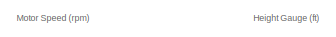
[diagram: root canvas - part 1/2, top center region]
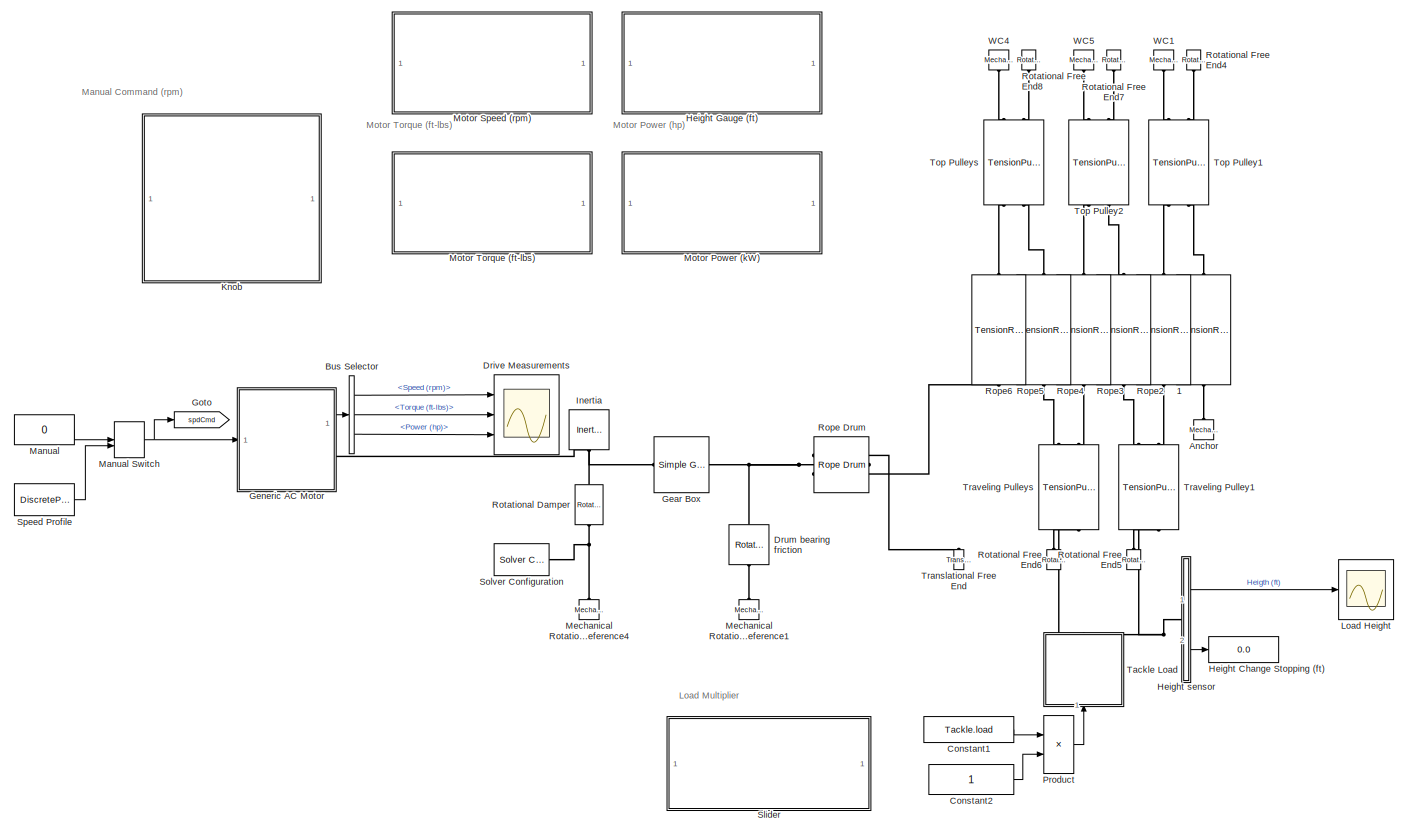
[diagram: root canvas - part 2/2, most of the canvas]
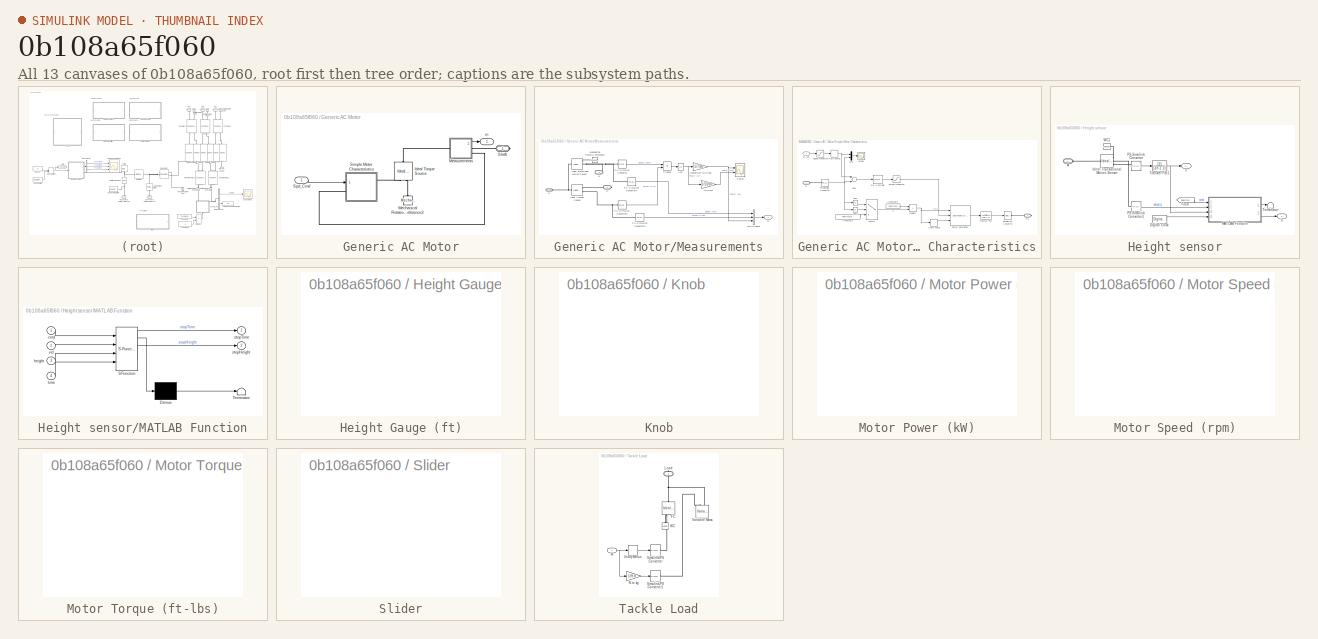
[diagram: thumbnail index - all 13 canvases of the model, root first then tree order]
MODEL slx_0b108a65f060
KIND model
CONFIG AbsTol = 1e-3
CONFIG EnableMultiTasking = on
CONFIG FixedStep = Ts
CONFIG InitFcn = DrawworksParameters();
CONFIG MaxStep = auto
CONFIG MinStep = auto
CONFIG PreLoadFcn = addpath('./Images');\naddpath('./Simscape_Pulley_Library');
CONFIG RelTol = 1e-3
CONFIG SampleTimeConstraint = Unconstrained
CONFIG Solver = ode45
CONFIG SolverName = ode45
CONFIG StartTime = 0.0
CONFIG StopTime = 30
BLOCK [Reference] 1  REF=CustomComponents_lib/TensionRope
  Ports = [0, 0, 0, 0, 0, 1, 1]
  SourceBlock = CustomComponents_lib/TensionRope
  SourceType = TensionRope
BLOCK [Reference] Anchor  REF=fl_lib/Mechanical/Translational
Elements/Mechanical
Translational
Reference
  Ports = [0, 0, 0, 0, 0, 1]
  SourceBlock = fl_lib/Mechanical/Translational\nElements/Mechanical\nTranslational\nReference
  SourceProductBaseCode = SS
  SourceProductName = Simscape
  SourceType = Mechanical\nTranslational\nReference
BLOCK [BusSelector] Bus Selector
  OutputAsBus = off
  OutputSignals = Speed (rpm),Torque (ft-lbs),Power (hp)
  Ports = [1, 3]
BLOCK [Constant] Constant1
  Value = Tackle.load
BLOCK [Constant] Constant2
BLOCK [Scope] Drive Measurements
  NumInputPorts = 3
  Ports = [3]
  ScopeSpecificationString = Simulink.scopes.TimeScopeBlockCfg('CurrentConfiguration', extmgr.ConfigurationSet(extmgr.Configuration('Core','General UI',true),extmgr.Configuration('Core','Source UI',true),extmgr.Configuration('Sources','WiredSimulink',true,'DataLoggingSaveFormat','Array','DataLoggingDecimation','1','DataLoggingDecimateData',true),extmgr.Configuration('Visuals','Time Domain',true,'SerializedDisplays',{struct('M...<+2960ch>
BLOCK [Reference] Drum bearing friction  REF=fl_lib/Mechanical/Rotational Elements/Rotational Friction
  Ports = [0, 0, 0, 0, 0, 1, 1]
  SourceBlock = fl_lib/Mechanical/Rotational Elements/Rotational Friction
  SourceProductBaseCode = SS
  SourceProductName = Simscape
  SourceType = Rotational Friction
BLOCK [Reference] Gear Box  REF=sdl_lib/Gears/Simple Gear
  Ports = [0, 0, 0, 0, 0, 1, 1]
  SourceBlock = sdl_lib/Gears/Simple Gear
  SourceProductBaseCode = LD
  SourceProductName = Simscape Driveline
  SourceType = Simple Gear
BLOCK [SubSystem] Generic AC Motor
  Ports = [1, 1, 0, 0, 0, 0, 1]
  RequestExecContextInheritance = off
  Variant = off
BLOCK [Reference] Generic AC Motor/Ideal Torque Source  REF=fl_lib/Mechanical/Mechanical Sources/Ideal Torque Source
  Ports = [0, 0, 0, 0, 0, 1, 2]
  SourceBlock = fl_lib/Mechanical/Mechanical Sources/Ideal Torque Source
  SourceProductBaseCode = SS
  SourceProductName = Simscape
  SourceType = Ideal Torque Source
BLOCK [SubSystem] Generic AC Motor/Measurements
  Ports = [0, 1, 0, 0, 0, 1, 2]
  RequestExecContextInheritance = off
  Variant = off
BLOCK [Abs] Generic AC Motor/Measurements/Abs
  Commented = through
  SaturateOnIntegerOverflow = off
  ZeroCross = off
BLOCK [BusCreator] Generic AC Motor/Measurements/Bus Creator
  DisplayOption = bar
  InheritFromInputs = on
  Inputs = 3
  Ports = [3, 1]
BLOCK [PMIOPort] Generic AC Motor/Measurements/C
  Port = 1
  Side = Right
BLOCK [Gain] Generic AC Motor/Measurements/Conversion (W to hp)
  Gain = 1/746
  OutDataTypeStr = Inherit: Inherit via internal rule
  ParamDataTypeStr = Inherit: Inherit via internal rule
  SaturateOnIntegerOverflow = off
BLOCK [Reference] Generic AC Motor/Measurements/Ideal Rotational Motion Sensor  REF=fl_lib/Mechanical/Mechanical Sensors/Ideal Rotational
Motion Sensor
  Ports = [0, 0, 0, 0, 0, 1, 3]
  SourceBlock = fl_lib/Mechanical/Mechanical Sensors/Ideal Rotational\nMotion Sensor
  SourceProductBaseCode = SS
  SourceProductName = Simscape
  SourceType = Ideal Rotational\nMotion Sensor
BLOCK [Reference] Generic AC Motor/Measurements/Ideal Torque Sensor  REF=fl_lib/Mechanical/Mechanical Sensors/Ideal Torque Sensor
  Ports = [0, 0, 0, 0, 0, 1, 2]
  SourceBlock = fl_lib/Mechanical/Mechanical Sensors/Ideal Torque Sensor
  SourceProductBaseCode = SS
  SourceProductName = Simscape
  SourceType = Ideal Torque Sensor
BLOCK [Reference] Generic AC Motor/Measurements/Mechanical Rotational Reference3  REF=fl_lib/Mechanical/Rotational Elements/Mechanical
Rotational Reference
  Ports = [0, 0, 0, 0, 0, 1]
  SourceBlock = fl_lib/Mechanical/Rotational Elements/Mechanical\nRotational Reference
  SourceProductBaseCode = SS
  SourceProductName = Simscape
  SourceType = Mechanical\nRotational Reference
BLOCK [Reference] Generic AC Motor/Measurements/PS-Simulink Converter  REF=nesl_utility/PS-Simulink
Converter
  Ports = [0, 1, 0, 0, 0, 1]
  SourceBlock = nesl_utility/PS-Simulink\nConverter
  SourceProductBaseCode = SS
  SourceProductName = Simscape
  SourceType = PS-Simulink\nConverter
BLOCK [Reference] Generic AC Motor/Measurements/PS-Simulink Converter2  REF=nesl_utility/PS-Simulink
Converter
  Ports = [0, 1, 0, 0, 0, 1]
  SourceBlock = nesl_utility/PS-Simulink\nConverter
  SourceProductBaseCode = SS
  SourceProductName = Simscape
  SourceType = PS-Simulink\nConverter
BLOCK [Reference] Generic AC Motor/Measurements/PS-Simulink Converter3  REF=nesl_utility/PS-Simulink
Converter
  Ports = [0, 1, 0, 0, 0, 1]
  SourceBlock = nesl_utility/PS-Simulink\nConverter
  SourceProductBaseCode = SS
  SourceProductName = Simscape
  SourceType = PS-Simulink\nConverter
BLOCK [Reference] Generic AC Motor/Measurements/PS-Simulink Converter4  REF=nesl_utility/PS-Simulink
Converter
  Ports = [0, 1, 0, 0, 0, 1]
  SourceBlock = nesl_utility/PS-Simulink\nConverter
  SourceProductBaseCode = SS
  SourceProductName = Simscape
  SourceType = PS-Simulink\nConverter
BLOCK [Scope] Generic AC Motor/Measurements/Power
  NumInputPorts = 2
  Ports = [2]
  ScopeSpecificationString = Simulink.scopes.TimeScopeBlockCfg('CurrentConfiguration', extmgr.ConfigurationSet(extmgr.Configuration('Core','General UI',true),extmgr.Configuration('Core','Source UI',true),extmgr.Configuration('Sources','WiredSimulink',true,'DataLoggingVariableName','ScopeData3','DataLoggingSaveFormat','Array','DataLoggingDecimation','1','DataLoggingDecimateData',true),extmgr.Configuration('Visuals','Time Domai...<+2302ch>
BLOCK [Product] Generic AC Motor/Measurements/Product
  InputSameDT = off
  OutDataTypeStr = Inherit: Inherit via internal rule
  Ports = [2, 1]
  RndMeth = Floor
  SaturateOnIntegerOverflow = off
BLOCK [PMIOPort] Generic AC Motor/Measurements/R
  Port = 2
  Side = Left
BLOCK [Gain] Generic AC Motor/Measurements/W to kW
  Gain = 1/1000
  OutDataTypeStr = Inherit: Inherit via internal rule
  ParamDataTypeStr = Inherit: Inherit via internal rule
  SaturateOnIntegerOverflow = off
BLOCK [Outport] Generic AC Motor/Measurements/m
  IconDisplay = Port number
BLOCK [PMIOPort] Generic AC Motor/Measurements/w
  Port = 3
  Side = Right
BLOCK [Reference] Generic AC Motor/Mechanical Rotational Reference3  REF=fl_lib/Mechanical/Rotational Elements/Mechanical
Rotational Reference
  Ports = [0, 0, 0, 0, 0, 1]
  SourceBlock = fl_lib/Mechanical/Rotational Elements/Mechanical\nRotational Reference
  SourceProductBaseCode = SS
  SourceProductName = Simscape
  SourceType = Mechanical\nRotational Reference
BLOCK [PMIOPort] Generic AC Motor/Shaft
  Port = 1
  Side = Right
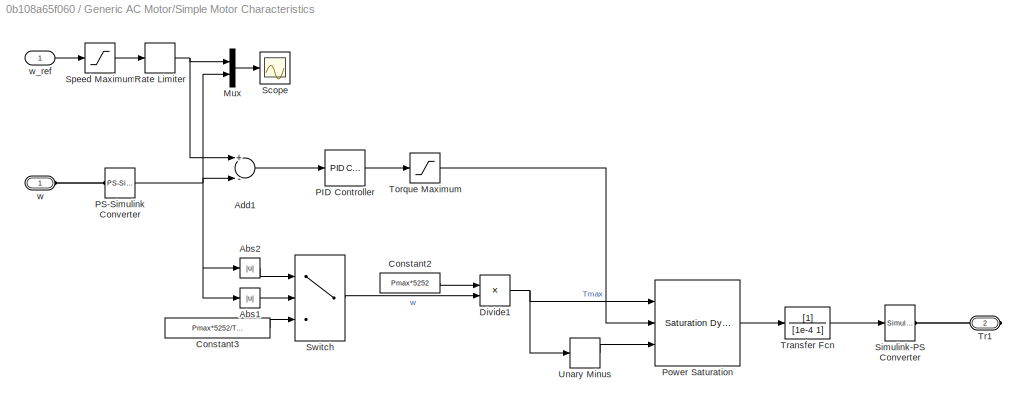
BLOCK [SubSystem] Generic AC Motor/Simple Motor Characteristics
  Ports = [1, 0, 0, 0, 0, 1, 1]
  RequestExecContextInheritance = off
  Variant = off
BLOCK [Abs] Generic AC Motor/Simple Motor Characteristics/Abs1
  SaturateOnIntegerOverflow = off
BLOCK [Abs] Generic AC Motor/Simple Motor Characteristics/Abs2
  SaturateOnIntegerOverflow = off
BLOCK [Sum] Generic AC Motor/Simple Motor Characteristics/Add1
  InputSameDT = off
  Inputs = +-
  OutDataTypeStr = Inherit: Inherit via internal rule
  Ports = [2, 1]
  SaturateOnIntegerOverflow = off
BLOCK [Constant] Generic AC Motor/Simple Motor Characteristics/Constant2
  Value = Pmax*5252
BLOCK [Constant] Generic AC Motor/Simple Motor Characteristics/Constant3
  Value = Pmax*5252/Tmax
BLOCK [Product] Generic AC Motor/Simple Motor Characteristics/Divide1
  InputSameDT = off
  Inputs = */
  OutDataTypeStr = Inherit: Inherit via internal rule
  Ports = [2, 1]
  RndMeth = Floor
  SaturateOnIntegerOverflow = off
BLOCK [Mux] Generic AC Motor/Simple Motor Characteristics/Mux
  DisplayOption = bar
  Inputs = 2
  Ports = [2, 1]
BLOCK [Reference] Generic AC Motor/Simple Motor Characteristics/PID Controller  REF=simulink/Continuous/PID Controller
  Ports = [1, 1]
  SourceBlock = simulink/Continuous/PID Controller
  SourceProductBaseCode = SL
  SourceProductName = Simulink
  SourceType = PID 1dof
BLOCK [Reference] Generic AC Motor/Simple Motor Characteristics/PS-Simulink Converter  REF=nesl_utility/PS-Simulink
Converter
  Ports = [0, 1, 0, 0, 0, 1]
  SourceBlock = nesl_utility/PS-Simulink\nConverter
  SourceProductBaseCode = SS
  SourceProductName = Simscape
  SourceType = PS-Simulink\nConverter
BLOCK [Reference] Generic AC Motor/Simple Motor Characteristics/Power Saturation  REF=simulink/Discontinuities/Saturation
Dynamic
  Ports = [3, 1]
  SourceBlock = simulink/Discontinuities/Saturation\nDynamic
  SourceProductBaseCode = SL
  SourceProductName = Simulink
  SourceType = Saturation Dynamic
BLOCK [RateLimiter] Generic AC Motor/Simple Motor Characteristics/Rate Limiter
  FallingSlewLimit = -wrate
  RisingSlewLimit = wrate
  SampleTimeMode = inherited
BLOCK [Scope] Generic AC Motor/Simple Motor Characteristics/Scope
  NumInputPorts = 1
  Ports = [1]
  ScopeSpecificationString = Simulink.scopes.TimeScopeBlockCfg('CurrentConfiguration', extmgr.ConfigurationSet(extmgr.Configuration('Core','General UI',true),extmgr.Configuration('Core','Source UI',true),extmgr.Configuration('Sources','WiredSimulink',true,'DataLoggingSaveFormat','Array','DataLoggingDecimation','1','DataLoggingDecimateData',true),extmgr.Configuration('Visuals','Time Domain',true,'SerializedDisplays',{struct('M...<+1712ch>
BLOCK [Reference] Generic AC Motor/Simple Motor Characteristics/Simulink-PS Converter  REF=nesl_utility/Simulink-PS
Converter
  Ports = [1, 0, 0, 0, 0, 0, 1]
  SourceBlock = nesl_utility/Simulink-PS\nConverter
  SourceProductBaseCode = SS
  SourceProductName = Simscape
  SourceType = Simulink-PS\nConverter
BLOCK [Saturate] Generic AC Motor/Simple Motor Characteristics/Speed Maximum
  InputPortMap = u0
  LowerLimit = -wmax
  Ports = [1, 1]
  UpperLimit = wmax
  ZeroCross = off
BLOCK [Switch] Generic AC Motor/Simple Motor Characteristics/Switch
  InputSameDT = off
  SaturateOnIntegerOverflow = off
  Threshold = Pmax/Tmax
  ZeroCross = off
BLOCK [Saturate] Generic AC Motor/Simple Motor Characteristics/Torque Maximum
  InputPortMap = u0
  LowerLimit = -Tmax
  Ports = [1, 1]
  UpperLimit = Tmax
  ZeroCross = off
BLOCK [PMIOPort] Generic AC Motor/Simple Motor Characteristics/Tr1
  Port = 2
  Side = Right
BLOCK [TransferFcn] Generic AC Motor/Simple Motor Characteristics/Transfer Fcn
  Denominator = [1e-4 1]
BLOCK [UnaryMinus] Generic AC Motor/Simple Motor Characteristics/Unary Minus
BLOCK [PMIOPort] Generic AC Motor/Simple Motor Characteristics/w
  Port = 1
  Side = Left
BLOCK [Inport] Generic AC Motor/Simple Motor Characteristics/w_ref
  IconDisplay = Port number
BLOCK [Inport] Generic AC Motor/Spd_Cmd
  IconDisplay = Port number
BLOCK [Outport] Generic AC Motor/m
  IconDisplay = Port number
BLOCK [Goto] Goto
  GotoTag = spdCmd
  TagVisibility = global
BLOCK [Display] Height Change Stopping (ft)
  Decimation = 1
  Ports = [1]
BLOCK [SubSystem] Height Gauge (ft)
  DialogController = hmiCreateDDGDialog
  IsWebBlock = on
  MaskHideContents = on
  Ports = []
  RequestExecContextInheritance = off
  Variant = off
BLOCK [SubSystem] Height sensor
  Ports = [0, 2, 0, 0, 0, 1]
  RequestExecContextInheritance = off
  Variant = off
BLOCK [PMIOPort] Height sensor/A
  Port = 1
  Side = Left
BLOCK [DigitalClock] Height sensor/Digital Clock
  SampleTime = Tssc
BLOCK [From] Height sensor/From
  GotoTag = spdCmd
  TagVisibility = global
BLOCK [Reference] Height sensor/Ideal Translational Motion Sensor  REF=fl_lib/Mechanical/Mechanical Sensors/Ideal Translational
Motion Sensor
  Ports = [0, 0, 0, 0, 0, 1, 3]
  SourceBlock = fl_lib/Mechanical/Mechanical Sensors/Ideal Translational\nMotion Sensor
  SourceProductBaseCode = SS
  SourceProductName = Simscape
  SourceType = Ideal Translational\nMotion Sensor
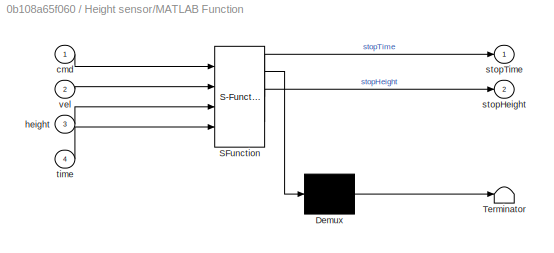
BLOCK [SubSystem] Height sensor/MATLAB Function
  ErrorFcn = Stateflow.Translate.translate
  PermitHierarchicalResolution = ExplicitOnly
  Ports = [4, 2]
  RequestExecContextInheritance = off
  SFBlockType = MATLAB Function
  SystemSampleTime = Tssc
  TreatAsAtomicUnit = on
  Variant = off
BLOCK [Demux] Height sensor/MATLAB Function/ Demux 
  Outputs = 1
  Ports = [1, 1]
BLOCK [S-Function] Height sensor/MATLAB Function/ SFunction 
  EnableBusSupport = on
  FunctionName = sf_sfun
  PortCounts = [4 3]
  Ports = [4, 3]
  SFcnIsStateOwnerBlock = off
  SFunctionDeploymentMode = off
  Tag = Stateflow S-Function drawWorks_Sim_GenericDrive 2
BLOCK [Terminator] Height sensor/MATLAB Function/ Terminator 
BLOCK [Inport] Height sensor/MATLAB Function/cmd
  IconDisplay = Port number
BLOCK [Inport] Height sensor/MATLAB Function/height
  IconDisplay = Port number
  Port = 3
BLOCK [Outport] Height sensor/MATLAB Function/stopHeight
  IconDisplay = Port number
  Port = 2
BLOCK [Outport] Height sensor/MATLAB Function/stopTime
  IconDisplay = Port number
BLOCK [Inport] Height sensor/MATLAB Function/time
  IconDisplay = Port number
  Port = 4
BLOCK [Inport] Height sensor/MATLAB Function/vel
  IconDisplay = Port number
  Port = 2
BLOCK [Reference] Height sensor/PS-Simulink Converter  REF=nesl_utility/PS-Simulink
Converter
  Ports = [0, 1, 0, 0, 0, 1]
  SourceBlock = nesl_utility/PS-Simulink\nConverter
  SourceProductBaseCode = SS
  SourceProductName = Simscape
  SourceType = PS-Simulink\nConverter
BLOCK [Reference] Height sensor/PS-Simulink Converter1  REF=nesl_utility/PS-Simulink
Converter
  Ports = [0, 1, 0, 0, 0, 1]
  SourceBlock = nesl_utility/PS-Simulink\nConverter
  SourceProductBaseCode = SS
  SourceProductName = Simscape
  SourceType = PS-Simulink\nConverter
BLOCK [Terminator] Height sensor/Terminator
BLOCK [TransferFcn] Height sensor/Transfer Fcn1
  Denominator = [1e-1 1]
BLOCK [Reference] Height sensor/WC1  REF=fl_lib/Mechanical/Translational
Elements/Mechanical
Translational
Reference
  Ports = [0, 0, 0, 0, 0, 1]
  SourceBlock = fl_lib/Mechanical/Translational\nElements/Mechanical\nTranslational\nReference
  SourceProductBaseCode = SS
  SourceProductName = Simscape
  SourceType = Mechanical\nTranslational\nReference
BLOCK [Outport] Height sensor/h
  IconDisplay = Port number
  Port = 2
BLOCK [Outport] Height sensor/x
  IconDisplay = Port number
BLOCK [Reference] Inertia  REF=fl_lib/Mechanical/Rotational Elements/Inertia
  Ports = [0, 0, 0, 0, 0, 1]
  SourceBlock = fl_lib/Mechanical/Rotational Elements/Inertia
  SourceProductBaseCode = SS
  SourceProductName = Simscape
  SourceType = Inertia
BLOCK [SubSystem] Knob
  DialogController = hmiCreateDDGDialog
  IsWebBlock = on
  MaskHideContents = on
  Ports = []
  RequestExecContextInheritance = off
  Variant = off
BLOCK [Scope] Load Height
  NumInputPorts = 1
  Ports = [1]
  ScopeSpecificationString = Simulink.scopes.TimeScopeBlockCfg('CurrentConfiguration', extmgr.ConfigurationSet(extmgr.Configuration('Core','General UI',true),extmgr.Configuration('Core','Source UI',true),extmgr.Configuration('Sources','WiredSimulink',true,'DataLoggingVariableName','ScopeData1'),extmgr.Configuration('Visuals','Time Domain',true,'SerializedDisplays',{struct('MinYLimReal','-3.27299','MaxYLimReal','26.19413','YLa...<+1499ch>
BLOCK [Constant] Manual
  Value = 0
BLOCK [ManualSwitch] Manual Switch
  CurrentSetting = 0
BLOCK [Reference] Mechanical Rotational Reference1  REF=fl_lib/Mechanical/Rotational Elements/Mechanical
Rotational Reference
  Ports = [0, 0, 0, 0, 0, 1]
  SourceBlock = fl_lib/Mechanical/Rotational Elements/Mechanical\nRotational Reference
  SourceProductBaseCode = SS
  SourceProductName = Simscape
  SourceType = Mechanical\nRotational Reference
BLOCK [Reference] Mechanical Rotational Reference4  REF=fl_lib/Mechanical/Rotational Elements/Mechanical
Rotational Reference
  Ports = [0, 0, 0, 0, 0, 1]
  SourceBlock = fl_lib/Mechanical/Rotational Elements/Mechanical\nRotational Reference
  SourceProductBaseCode = SS
  SourceProductName = Simscape
  SourceType = Mechanical\nRotational Reference
BLOCK [SubSystem] Motor Power (kW)
  DialogController = hmiCreateDDGDialog
  IsWebBlock = on
  MaskHideContents = on
  Ports = []
  RequestExecContextInheritance = off
  Variant = off
BLOCK [SubSystem] Motor Speed (rpm)
  DialogController = hmiCreateDDGDialog
  IsWebBlock = on
  MaskHideContents = on
  Ports = []
  RequestExecContextInheritance = off
  Variant = off
BLOCK [SubSystem] Motor Torque (ft-lbs)
  DialogController = hmiCreateDDGDialog
  IsWebBlock = on
  MaskHideContents = on
  Ports = []
  RequestExecContextInheritance = off
  Variant = off
BLOCK [Product] Product
  InputSameDT = off
  OutDataTypeStr = Inherit: Inherit via internal rule
  Ports = [2, 1]
  RndMeth = Floor
  SaturateOnIntegerOverflow = off
BLOCK [Reference] Rope Drum  REF=sdl_lib/Couplings & Drives/Rope Drum
  Ports = [0, 0, 0, 0, 0, 1, 2]
  SourceBlock = sdl_lib/Couplings & Drives/Rope Drum
  SourceProductBaseCode = LD
  SourceProductName = Simscape Driveline
  SourceType = Rope Drum
BLOCK [Reference] Rope2  REF=CustomComponents_lib/TensionRope
  Ports = [0, 0, 0, 0, 0, 1, 1]
  SourceBlock = CustomComponents_lib/TensionRope
  SourceType = TensionRope
BLOCK [Reference] Rope3  REF=CustomComponents_lib/TensionRope
  Ports = [0, 0, 0, 0, 0, 1, 1]
  SourceBlock = CustomComponents_lib/TensionRope
  SourceType = TensionRope
BLOCK [Reference] Rope4  REF=CustomComponents_lib/TensionRope
  Ports = [0, 0, 0, 0, 0, 1, 1]
  SourceBlock = CustomComponents_lib/TensionRope
  SourceType = TensionRope
BLOCK [Reference] Rope5  REF=CustomComponents_lib/TensionRope
  Ports = [0, 0, 0, 0, 0, 1, 1]
  SourceBlock = CustomComponents_lib/TensionRope
  SourceType = TensionRope
BLOCK [Reference] Rope6  REF=CustomComponents_lib/TensionRope
  Ports = [0, 0, 0, 0, 0, 1, 1]
  SourceBlock = CustomComponents_lib/TensionRope
  SourceType = TensionRope
BLOCK [Reference] Rotational Damper  REF=fl_lib/Mechanical/Rotational Elements/Rotational Damper
  Ports = [0, 0, 0, 0, 0, 1, 1]
  SourceBlock = fl_lib/Mechanical/Rotational Elements/Rotational Damper
  SourceProductBaseCode = SS
  SourceProductName = Simscape
  SourceType = Rotational Damper
BLOCK [Reference] Rotational Free End4  REF=fl_lib/Mechanical/Rotational Elements/Rotational Free End
  Ports = [0, 0, 0, 0, 0, 1]
  SourceBlock = fl_lib/Mechanical/Rotational Elements/Rotational Free End
  SourceProductBaseCode = SS
  SourceProductName = Simscape
  SourceType = Rotational Free End
BLOCK [Reference] Rotational Free End5  REF=fl_lib/Mechanical/Rotational Elements/Rotational Free End
  Ports = [0, 0, 0, 0, 0, 1]
  SourceBlock = fl_lib/Mechanical/Rotational Elements/Rotational Free End
  SourceProductBaseCode = SS
  SourceProductName = Simscape
  SourceType = Rotational Free End
BLOCK [Reference] Rotational Free End6  REF=fl_lib/Mechanical/Rotational Elements/Rotational Free End
  Ports = [0, 0, 0, 0, 0, 1]
  SourceBlock = fl_lib/Mechanical/Rotational Elements/Rotational Free End
  SourceProductBaseCode = SS
  SourceProductName = Simscape
  SourceType = Rotational Free End
BLOCK [Reference] Rotational Free End7  REF=fl_lib/Mechanical/Rotational Elements/Rotational Free End
  Ports = [0, 0, 0, 0, 0, 1]
  SourceBlock = fl_lib/Mechanical/Rotational Elements/Rotational Free End
  SourceProductBaseCode = SS
  SourceProductName = Simscape
  SourceType = Rotational Free End
BLOCK [Reference] Rotational Free End8  REF=fl_lib/Mechanical/Rotational Elements/Rotational Free End
  Ports = [0, 0, 0, 0, 0, 1]
  SourceBlock = fl_lib/Mechanical/Rotational Elements/Rotational Free End
  SourceProductBaseCode = SS
  SourceProductName = Simscape
  SourceType = Rotational Free End
BLOCK [SubSystem] Slider
  DialogController = hmiCreateDDGDialog
  IsWebBlock = on
  MaskHideContents = on
  Ports = []
  RequestExecContextInheritance = off
  Variant = off
BLOCK [Reference] Solver Configuration  REF=nesl_utility/Solver
Configuration
  Ports = [0, 0, 0, 0, 0, 0, 1]
  SourceBlock = nesl_utility/Solver\nConfiguration
  SourceProductBaseCode = SS
  SourceProductName = Simscape
  SourceType = Solver\nConfiguration
BLOCK [DiscretePulseGenerator] Speed Profile
  Amplitude = 750
  Period = 30
  PhaseDelay = 2.5
  Ports = [0, 1]
  PulseType = Time based
  PulseWidth = 50
BLOCK [SubSystem] Tackle Load
  Ports = [1, 0, 0, 0, 0, 0, 1]
  RequestExecContextInheritance = off
  Variant = off
BLOCK [Reference] Tackle Load/FC  REF=fl_lib/Mechanical/Mechanical Sources/Ideal Force Source
  Ports = [0, 0, 0, 0, 0, 1, 2]
  SourceBlock = fl_lib/Mechanical/Mechanical Sources/Ideal Force Source
  SourceProductBaseCode = SS
  SourceProductName = Simscape
  SourceType = Ideal Force Source
BLOCK [PMIOPort] Tackle Load/Load
  Port = 1
  Side = Right
BLOCK [Gain] Tackle Load/N to kg
  Gain = 1/9.8
  OutDataTypeStr = Inherit: Inherit via internal rule
  ParamDataTypeStr = Inherit: Inherit via internal rule
  SaturateOnIntegerOverflow = off
BLOCK [Reference] Tackle Load/Simulink-PS Converter  REF=nesl_utility/Simulink-PS
Converter
  Ports = [1, 0, 0, 0, 0, 0, 1]
  SourceBlock = nesl_utility/Simulink-PS\nConverter
  SourceProductBaseCode = SS
  SourceProductName = Simscape
  SourceType = Simulink-PS\nConverter
BLOCK [Reference] Tackle Load/Simulink-PS Converter1  REF=nesl_utility/Simulink-PS
Converter
  Ports = [1, 0, 0, 0, 0, 0, 1]
  SourceBlock = nesl_utility/Simulink-PS\nConverter
  SourceProductBaseCode = SS
  SourceProductName = Simscape
  SourceType = Simulink-PS\nConverter
BLOCK [UnaryMinus] Tackle Load/Unary Minus
BLOCK [Reference] Tackle Load/Variable Mass  REF=sdl_lib/Inertias & Loads/Variable Mass
  Ports = [0, 0, 0, 0, 0, 2]
  SourceBlock = sdl_lib/Inertias & Loads/Variable Mass
  SourceProductBaseCode = LD
  SourceProductName = Simscape Driveline
  SourceType = Variable Mass
BLOCK [Inport] Tackle Load/W
  IconDisplay = Port number
BLOCK [Reference] Tackle Load/WC  REF=fl_lib/Mechanical/Translational
Elements/Mechanical
Translational
Reference
  Ports = [0, 0, 0, 0, 0, 1]
  SourceBlock = fl_lib/Mechanical/Translational\nElements/Mechanical\nTranslational\nReference
  SourceProductBaseCode = SS
  SourceProductName = Simscape
  SourceType = Mechanical\nTranslational\nReference
BLOCK [Reference] Top Pulley1  REF=CustomComponents_lib/TensionPulley
  Ports = [0, 0, 0, 0, 0, 2, 2]
  SourceBlock = CustomComponents_lib/TensionPulley
  SourceType = TensionPulley
BLOCK [Reference] Top Pulley2  REF=CustomComponents_lib/TensionPulley
  Ports = [0, 0, 0, 0, 0, 2, 2]
  SourceBlock = CustomComponents_lib/TensionPulley
  SourceType = TensionPulley
BLOCK [Reference] Top Pulleys  REF=CustomComponents_lib/TensionPulley
  Ports = [0, 0, 0, 0, 0, 2, 2]
  SourceBlock = CustomComponents_lib/TensionPulley
  SourceType = TensionPulley
BLOCK [Reference] Translational Free End  REF=fl_lib/Mechanical/Translational
Elements/Translational Free
End
  Ports = [0, 0, 0, 0, 0, 1]
  SourceBlock = fl_lib/Mechanical/Translational\nElements/Translational Free\nEnd
  SourceProductBaseCode = SS
  SourceProductName = Simscape
  SourceType = Translational Free\nEnd
BLOCK [Reference] Traveling Pulley1  REF=CustomComponents_lib/TensionPulley
  Ports = [0, 0, 0, 0, 0, 2, 2]
  SourceBlock = CustomComponents_lib/TensionPulley
  SourceType = TensionPulley
BLOCK [Reference] Traveling Pulleys  REF=CustomComponents_lib/TensionPulley
  Ports = [0, 0, 0, 0, 0, 2, 2]
  SourceBlock = CustomComponents_lib/TensionPulley
  SourceType = TensionPulley
BLOCK [Reference] WC1  REF=fl_lib/Mechanical/Translational
Elements/Mechanical
Translational
Reference
  Ports = [0, 0, 0, 0, 0, 1]
  SourceBlock = fl_lib/Mechanical/Translational\nElements/Mechanical\nTranslational\nReference
  SourceProductBaseCode = SS
  SourceProductName = Simscape
  SourceType = Mechanical\nTranslational\nReference
BLOCK [Reference] WC4  REF=fl_lib/Mechanical/Translational
Elements/Mechanical
Translational
Reference
  Ports = [0, 0, 0, 0, 0, 1]
  SourceBlock = fl_lib/Mechanical/Translational\nElements/Mechanical\nTranslational\nReference
  SourceProductBaseCode = SS
  SourceProductName = Simscape
  SourceType = Mechanical\nTranslational\nReference
BLOCK [Reference] WC5  REF=fl_lib/Mechanical/Translational
Elements/Mechanical
Translational
Reference
  Ports = [0, 0, 0, 0, 0, 1]
  SourceBlock = fl_lib/Mechanical/Translational\nElements/Mechanical\nTranslational\nReference
  SourceProductBaseCode = SS
  SourceProductName = Simscape
  SourceType = Mechanical\nTranslational\nReference
ANNOTATION (root): Manual Command (rpm)
ANNOTATION (root): Motor Power (hp)
ANNOTATION (root): Height Gauge (ft)
ANNOTATION (root): Load Multiplier
ANNOTATION (root): Motor Speed (rpm)
ANNOTATION (root): Motor Torque (ft-lbs)
LINE Bus Selector:1 -> Drive Measurements:1
LINE Bus Selector:2 -> Drive Measurements:2
LINE Bus Selector:3 -> Drive Measurements:3
LINE Constant1:1 -> Product:1
LINE Constant2:1 -> Product:2
NET Generic AC Motor/Measurements/Abs:1 -> Generic AC Motor/Measurements/Conversion (W to hp):1, Generic AC Motor/Measurements/W to kW:1
LINE Generic AC Motor/Measurements/Bus Creator:1 -> Generic AC Motor/Measurements/m:1
NET Generic AC Motor/Measurements/Conversion (W to hp):1 -> Generic AC Motor/Measurements/Bus Creator:3, Generic AC Motor/Measurements/Power:1
LINE Generic AC Motor/Measurements/PS-Simulink Converter2:1 -> Generic AC Motor/Measurements/Product:2
LINE Generic AC Motor/Measurements/PS-Simulink Converter3:1 -> Generic AC Motor/Measurements/Bus Creator:2
LINE Generic AC Motor/Measurements/PS-Simulink Converter4:1 -> Generic AC Motor/Measurements/Bus Creator:1
LINE Generic AC Motor/Measurements/PS-Simulink Converter:1 -> Generic AC Motor/Measurements/Product:1
LINE Generic AC Motor/Measurements/Product:1 -> Generic AC Motor/Measurements/Abs:1
LINE Generic AC Motor/Measurements/W to kW:1 -> Generic AC Motor/Measurements/Power:2
LINE Generic AC Motor/Measurements:1 -> Generic AC Motor/m:1
LINE Generic AC Motor/Simple Motor Characteristics/Abs1:1 -> Generic AC Motor/Simple Motor Characteristics/Switch:2
LINE Generic AC Motor/Simple Motor Characteristics/Abs2:1 -> Generic AC Motor/Simple Motor Characteristics/Switch:1
LINE Generic AC Motor/Simple Motor Characteristics/Add1:1 -> Generic AC Motor/Simple Motor Characteristics/PID Controller:1
LINE Generic AC Motor/Simple Motor Characteristics/Constant2:1 -> Generic AC Motor/Simple Motor Characteristics/Divide1:1
LINE Generic AC Motor/Simple Motor Characteristics/Constant3:1 -> Generic AC Motor/Simple Motor Characteristics/Switch:3
NET Generic AC Motor/Simple Motor Characteristics/Divide1:1 -> Generic AC Motor/Simple Motor Characteristics/Power Saturation:1, Generic AC Motor/Simple Motor Characteristics/Unary Minus:1
LINE Generic AC Motor/Simple Motor Characteristics/Mux:1 -> Generic AC Motor/Simple Motor Characteristics/Scope:1
LINE Generic AC Motor/Simple Motor Characteristics/PID Controller:1 -> Generic AC Motor/Simple Motor Characteristics/Torque Maximum:1
NET Generic AC Motor/Simple Motor Characteristics/PS-Simulink Converter:1 -> Generic AC Motor/Simple Motor Characteristics/Abs1:1, Generic AC Motor/Simple Motor Characteristics/Abs2:1, Generic AC Motor/Simple Motor Characteristics/Add1:2, Generic AC Motor/Simple Motor Characteristics/Mux:2
LINE Generic AC Motor/Simple Motor Characteristics/Power Saturation:1 -> Generic AC Motor/Simple Motor Characteristics/Transfer Fcn:1
NET Generic AC Motor/Simple Motor Characteristics/Rate Limiter:1 -> Generic AC Motor/Simple Motor Characteristics/Add1:1, Generic AC Motor/Simple Motor Characteristics/Mux:1
LINE Generic AC Motor/Simple Motor Characteristics/Speed Maximum:1 -> Generic AC Motor/Simple Motor Characteristics/Rate Limiter:1
LINE Generic AC Motor/Simple Motor Characteristics/Switch:1 -> Generic AC Motor/Simple Motor Characteristics/Divide1:2
LINE Generic AC Motor/Simple Motor Characteristics/Torque Maximum:1 -> Generic AC Motor/Simple Motor Characteristics/Power Saturation:2
LINE Generic AC Motor/Simple Motor Characteristics/Transfer Fcn:1 -> Generic AC Motor/Simple Motor Characteristics/Simulink-PS Converter:1
LINE Generic AC Motor/Simple Motor Characteristics/Unary Minus:1 -> Generic AC Motor/Simple Motor Characteristics/Power Saturation:3
LINE Generic AC Motor/Simple Motor Characteristics/w_ref:1 -> Generic AC Motor/Simple Motor Characteristics/Speed Maximum:1
LINE Generic AC Motor/Spd_Cmd:1 -> Generic AC Motor/Simple Motor Characteristics:1
LINE Generic AC Motor:1 -> Bus Selector:1
LINE Height sensor/Digital Clock:1 -> Height sensor/MATLAB Function:4
LINE Height sensor/From:1 -> Height sensor/MATLAB Function:1
LINE Height sensor/MATLAB Function:1 -> Height sensor/Terminator:1
LINE Height sensor/MATLAB Function:2 -> Height sensor/h:1
LINE Height sensor/PS-Simulink Converter1:1 -> Height sensor/MATLAB Function:2
LINE Height sensor/PS-Simulink Converter:1 -> Height sensor/Transfer Fcn1:1
NET Height sensor/Transfer Fcn1:1 -> Height sensor/MATLAB Function:3, Height sensor/x:1
LINE Height sensor:1 -> Load Height:1
LINE Height sensor:2 -> Height Change Stopping (ft):1
NET Manual Switch:1 -> Generic AC Motor:1, Goto:1
LINE Manual:1 -> Manual Switch:1
LINE Product:1 -> Tackle Load:1
LINE Speed Profile:1 -> Manual Switch:2
LINE Tackle Load/N to kg:1 -> Tackle Load/Simulink-PS Converter1:1
LINE Tackle Load/Unary Minus:1 -> Tackle Load/Simulink-PS Converter:1
NET Tackle Load/W:1 -> Tackle Load/N to kg:1, Tackle Load/Unary Minus:1
PLINE 1:LConn1 -- Anchor:LConn1
PLINE 1:RConn1 -- Top Pulley1:RConn2
PNET net1: Drum bearing friction:LConn1 -- Gear Box:RConn1 -- Rope Drum:LConn1
PLINE Drum bearing friction:RConn1 -- Mechanical Rotational Reference1:LConn1
PNET net2: Gear Box:LConn1 -- Generic AC Motor:RConn1 -- Inertia:LConn1 -- Rotational Damper:LConn1
PLINE Generic AC Motor/Ideal Torque Source:LConn1 -- Generic AC Motor/Measurements:LConn1
PLINE Generic AC Motor/Ideal Torque Source:RConn1 -- Generic AC Motor/Simple Motor Characteristics:RConn1
PLINE Generic AC Motor/Ideal Torque Source:RConn2 -- Generic AC Motor/Mechanical Rotational Reference3:LConn1
PLINE Generic AC Motor/Measurements/C:RConn1 -- Generic AC Motor/Measurements/Ideal Torque Sensor:RConn1
PNET net3: Generic AC Motor/Measurements/Ideal Rotational Motion Sensor:LConn1 -- Generic AC Motor/Measurements/Ideal Torque Sensor:LConn1 -- Generic AC Motor/Measurements/R:RConn1
PLINE Generic AC Motor/Measurements/Ideal Rotational Motion Sensor:RConn1 -- Generic AC Motor/Measurements/Mechanical Rotational Reference3:LConn1
PNET net4: Generic AC Motor/Measurements/Ideal Rotational Motion Sensor:RConn2 -- Generic AC Motor/Measurements/PS-Simulink Converter4:LConn1 -- Generic AC Motor/Measurements/PS-Simulink Converter:LConn1 -- Generic AC Motor/Measurements/w:RConn1
PNET net5: Generic AC Motor/Measurements/Ideal Torque Sensor:RConn2 -- Generic AC Motor/Measurements/PS-Simulink Converter2:LConn1 -- Generic AC Motor/Measurements/PS-Simulink Converter3:LConn1
PLINE Generic AC Motor/Measurements:RConn1 -- Generic AC Motor/Shaft:RConn1
PLINE Generic AC Motor/Measurements:RConn2 -- Generic AC Motor/Simple Motor Characteristics:LConn1
PLINE Generic AC Motor/Simple Motor Characteristics/PS-Simulink Converter:LConn1 -- Generic AC Motor/Simple Motor Characteristics/w:RConn1
PLINE Generic AC Motor/Simple Motor Characteristics/Simulink-PS Converter:RConn1 -- Generic AC Motor/Simple Motor Characteristics/Tr1:RConn1
PLINE Height sensor/A:RConn1 -- Height sensor/Ideal Translational Motion Sensor:LConn1
PLINE Height sensor/Ideal Translational Motion Sensor:RConn1 -- Height sensor/WC1:LConn1
PLINE Height sensor/Ideal Translational Motion Sensor:RConn2 -- Height sensor/PS-Simulink Converter1:LConn1
PLINE Height sensor/Ideal Translational Motion Sensor:RConn3 -- Height sensor/PS-Simulink Converter:LConn1
PNET net6: Height sensor:LConn1 -- Tackle Load:RConn1 -- Traveling Pulley1:LConn1 -- Traveling Pulleys:LConn1
PNET net7: Mechanical Rotational Reference4:LConn1 -- Rotational Damper:RConn1 -- Solver Configuration:RConn1
PLINE Rope Drum:RConn1 -- Translational Free End:LConn1
PLINE Rope Drum:RConn2 -- Rope6:LConn1
PLINE Rope2:LConn1 -- Traveling Pulley1:RConn1
PLINE Rope2:RConn1 -- Top Pulley1:RConn1
PLINE Rope3:LConn1 -- Traveling Pulley1:RConn2
PLINE Rope3:RConn1 -- Top Pulley2:RConn2
PLINE Rope4:LConn1 -- Traveling Pulleys:RConn1
PLINE Rope4:RConn1 -- Top Pulley2:RConn1
PLINE Rope5:LConn1 -- Traveling Pulleys:RConn2
PLINE Rope5:RConn1 -- Top Pulleys:RConn2
PLINE Rope6:RConn1 -- Top Pulleys:RConn1
PLINE Rotational Free End4:LConn1 -- Top Pulley1:LConn2
PLINE Rotational Free End5:LConn1 -- Traveling Pulley1:LConn2
PLINE Rotational Free End6:LConn1 -- Traveling Pulleys:LConn2
PLINE Rotational Free End7:LConn1 -- Top Pulley2:LConn2
PLINE Rotational Free End8:LConn1 -- Top Pulleys:LConn2
PNET net8: Tackle Load/FC:LConn1 -- Tackle Load/Load:RConn1 -- Tackle Load/Variable Mass:LConn2
PLINE Tackle Load/FC:RConn1 -- Tackle Load/Simulink-PS Converter:RConn1
PLINE Tackle Load/FC:RConn2 -- Tackle Load/WC:LConn1
PLINE Tackle Load/Simulink-PS Converter1:RConn1 -- Tackle Load/Variable Mass:LConn1
PLINE Top Pulley1:LConn1 -- WC1:LConn1
PLINE Top Pulley2:LConn1 -- WC5:LConn1
PLINE Top Pulleys:LConn1 -- WC4:LConn1
note: NET lines group one-source signal fan-out (src -> all destinations, sorted); 1:1 wires keep LINE; PNET lines group multi-terminal physical nets as a canonical sorted terminal list (undirected conserving connections); 2-terminal nets keep the pairwise PLINE form
CHART Height
sensor/MATLAB Function states=1 transitions=1
  STATE_LABEL 'eML_blk_kernel()'
  STATE_LABEL 'SCRIPT:\nfunction [stopTime,stopHeight] = fcn(cmd,vel,height,time)\n\npersistent timeElapse\npersistent measTime\npersistent timeStart\npersistent prevCmd\npersistent heightElapse\npersistent heightStart\n\nif isempty(timeElapse) || time < 1\n    timeElapse = 0;\n    measTime = 0;\n    timeStart = time;\n    prevCmd = 0;\n    heightElapse = 0;\n    heightStart = 0;\nelse  \n    if cmd == 0 && abs(cmd-prevCmd) > 1e-...<+374ch>'
